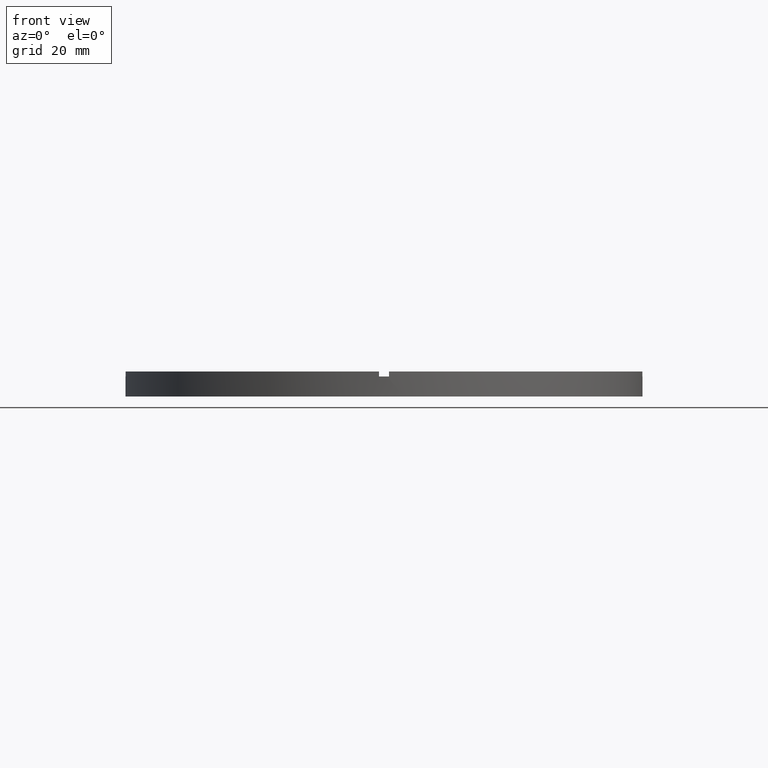
[diagram: clean part render]
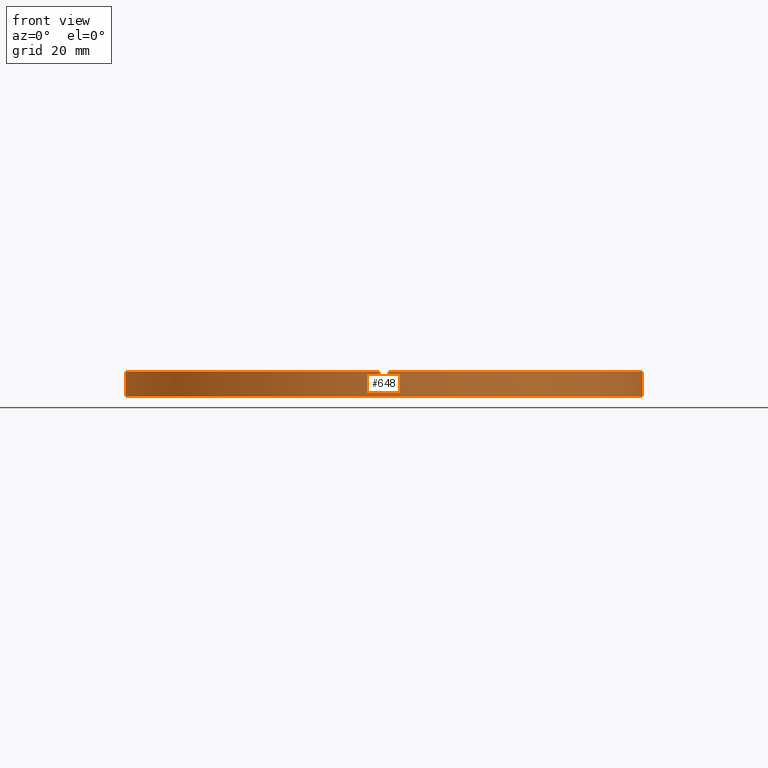
[diagram: same view with one face highlighted and labeled with its STEP entity id]
A machine part, front view. The second image highlights one B-rep face of the part: STEP entity #648.
In plain terms, the highlighted cylindrical surface (partial cylindrical patch) has radius 51.5 mm, axis along (-0, -0, -1).
Its self-contained STEP definition (entity closure, byte-faithful):
#19 = CARTESIAN_POINT ( 'NONE',  ( -1.000000000000156319, -51.49029034682169481, 4.000000000000000000 ) ) ;
#31 = ORIENTED_EDGE ( 'NONE', *, *, #251, .F. ) ;
#38 = CARTESIAN_POINT ( 'NONE',  ( -51.49029034682169481, -1.000000000000031974, 5.000000000000000000 ) ) ;
#44 = VERTEX_POINT ( 'NONE', #303 ) ;
#45 = DIRECTION ( 'NONE',  ( 1.000000000000000000, 0.000000000000000000, 0.000000000000000000 ) ) ;
#49 = CARTESIAN_POINT ( 'NONE',  ( 0.9999999999998436806, -51.49029034682169481, 5.000000000000000000 ) ) ;
#51 = EDGE_CURVE ( 'NONE', #671, #633, #138, .T. ) ;
#73 = CARTESIAN_POINT ( 'NONE',  ( 0.000000000000000000, 0.000000000000000000, 5.000000000000000000 ) ) ;
#74 = DIRECTION ( 'NONE',  ( -0.000000000000000000, -0.000000000000000000, -1.000000000000000000 ) ) ;
#87 = DIRECTION ( 'NONE',  ( 0.000000000000000000, 0.000000000000000000, 1.000000000000000000 ) ) ;
#101 = VERTEX_POINT ( 'NONE', #469 ) ;
#135 = EDGE_CURVE ( 'NONE', #44, #571, #464, .T. ) ;
#138 = CIRCLE ( 'NONE', #499, 51.50000000000000000 ) ;
#145 = CARTESIAN_POINT ( 'NONE',  ( -51.50000000000000000, 0.000000000000000000, 4.000000000000000000 ) ) ;
#147 = ORIENTED_EDGE ( 'NONE', *, *, #602, .T. ) ;
#150 = CARTESIAN_POINT ( 'NONE',  ( -51.50000000000000000, 0.000000000000000000, 5.000000000000000000 ) ) ;
#158 = EDGE_CURVE ( 'NONE', #675, #689, #498, .T. ) ;
#161 = CARTESIAN_POINT ( 'NONE',  ( -1.000000000000156319, -51.49029034682169481, 5.000000000000000000 ) ) ;
#165 = ORIENTED_EDGE ( 'NONE', *, *, #531, .F. ) ;
#166 = CARTESIAN_POINT ( 'NONE',  ( -51.50000000000000000, 0.000000000000000000, 0.000000000000000000 ) ) ;
#169 = CARTESIAN_POINT ( 'NONE',  ( 0.000000000000000000, 0.000000000000000000, 0.000000000000000000 ) ) ;
#171 = ORIENTED_EDGE ( 'NONE', *, *, #340, .F. ) ;
#176 = ORIENTED_EDGE ( 'NONE', *, *, #333, .T. ) ;
#178 = EDGE_LOOP ( 'NONE', ( #171, #31, #391, #652, #176, #165, #299, #304, #147, #456, #311, #700 ) ) ;
#185 = LINE ( 'NONE', #399, #197 ) ;
#197 = VECTOR ( 'NONE', #353, 1000.000000000000000 ) ;
#209 = VECTOR ( 'NONE', #550, 1000.000000000000000 ) ;
#223 = VECTOR ( 'NONE', #245, 1000.000000000000000 ) ;
#231 = CARTESIAN_POINT ( 'NONE',  ( 0.000000000000000000, 0.000000000000000000, 4.000000000000000000 ) ) ;
#245 = DIRECTION ( 'NONE',  ( 0.000000000000000000, 0.000000000000000000, 1.000000000000000000 ) ) ;
#251 = EDGE_CURVE ( 'NONE', #368, #101, #466, .T. ) ;
#252 = DIRECTION ( 'NONE',  ( 0.000000000000000000, 0.000000000000000000, 1.000000000000000000 ) ) ;
#253 = DIRECTION ( 'NONE',  ( -1.000000000000000000, 0.000000000000000000, 0.000000000000000000 ) ) ;
#262 = CIRCLE ( 'NONE', #583, 51.50000000000000000 ) ;
#266 = VECTOR ( 'NONE', #473, 1000.000000000000000 ) ;
#279 = DIRECTION ( 'NONE',  ( 1.000000000000000000, 0.000000000000000000, 0.000000000000000000 ) ) ;
#299 = ORIENTED_EDGE ( 'NONE', *, *, #361, .T. ) ;
#300 = DIRECTION ( 'NONE',  ( 0.000000000000000000, 0.000000000000000000, 1.000000000000000000 ) ) ;
#303 = CARTESIAN_POINT ( 'NONE',  ( 0.9999999999998436806, -51.49029034682169481, 5.000000000000000000 ) ) ;
#304 = ORIENTED_EDGE ( 'NONE', *, *, #535, .F. ) ;
#309 = AXIS2_PLACEMENT_3D ( 'NONE', #574, #87, #365 ) ;
#311 = ORIENTED_EDGE ( 'NONE', *, *, #587, .T. ) ;
#322 = CARTESIAN_POINT ( 'NONE',  ( -1.000000000000156319, -51.49029034682169481, 5.000000000000000000 ) ) ;
#326 = DIRECTION ( 'NONE',  ( 0.000000000000000000, 0.000000000000000000, 1.000000000000000000 ) ) ;
#333 = EDGE_CURVE ( 'NONE', #44, #669, #483, .T. ) ;
#340 = EDGE_CURVE ( 'NONE', #101, #633, #185, .T. ) ;
#343 = DIRECTION ( 'NONE',  ( 1.000000000000000000, 0.000000000000000000, 0.000000000000000000 ) ) ;
#345 = CARTESIAN_POINT ( 'NONE',  ( 51.49029034682169481, -1.000000000000154765, 4.000000000000000000 ) ) ;
#351 = AXIS2_PLACEMENT_3D ( 'NONE', #73, #300, #343 ) ;
#353 = DIRECTION ( 'NONE',  ( -0.000000000000000000, -0.000000000000000000, -1.000000000000000000 ) ) ;
#361 = EDGE_CURVE ( 'NONE', #419, #683, #738, .T. ) ;
#365 = DIRECTION ( 'NONE',  ( 1.000000000000000000, 0.000000000000000000, 0.000000000000000000 ) ) ;
#368 = VERTEX_POINT ( 'NONE', #345 ) ;
#378 = DIRECTION ( 'NONE',  ( -0.000000000000000000, -0.000000000000000000, -1.000000000000000000 ) ) ;
#391 = ORIENTED_EDGE ( 'NONE', *, *, #782, .T. ) ;
#397 = DIRECTION ( 'NONE',  ( 1.000000000000000000, 0.000000000000000000, 0.000000000000000000 ) ) ;
#399 = CARTESIAN_POINT ( 'NONE',  ( 51.50000000000000000, 6.306931015608868807E-15, 5.000000000000000000 ) ) ;
#403 = CARTESIAN_POINT ( 'NONE',  ( 0.000000000000000000, 0.000000000000000000, 4.000000000000000000 ) ) ;
#419 = VERTEX_POINT ( 'NONE', #19 ) ;
#439 = CARTESIAN_POINT ( 'NONE',  ( 0.9999999999998436806, -51.49029034682169481, 4.000000000000000000 ) ) ;
#450 = CIRCLE ( 'NONE', #608, 51.50000000000000000 ) ;
#456 = ORIENTED_EDGE ( 'NONE', *, *, #158, .F. ) ;
#464 = CIRCLE ( 'NONE', #351, 51.50000000000000000 ) ;
#466 = CIRCLE ( 'NONE', #595, 51.50000000000000000 ) ;
#469 = CARTESIAN_POINT ( 'NONE',  ( 51.50000000000000000, 6.306931015608868807E-15, 4.000000000000000000 ) ) ;
#473 = DIRECTION ( 'NONE',  ( 0.000000000000000000, 0.000000000000000000, 1.000000000000000000 ) ) ;
#482 = CARTESIAN_POINT ( 'NONE',  ( 0.000000000000000000, 0.000000000000000000, 5.000000000000000000 ) ) ;
#483 = LINE ( 'NONE', #49, #209 ) ;
#495 = DIRECTION ( 'NONE',  ( 0.000000000000000000, 0.000000000000000000, 1.000000000000000000 ) ) ;
#498 = CIRCLE ( 'NONE', #309, 51.50000000000000000 ) ;
#499 = AXIS2_PLACEMENT_3D ( 'NONE', #169, #252, #397 ) ;
#509 = FACE_OUTER_BOUND ( 'NONE', #178, .T. ) ;
#512 = LINE ( 'NONE', #754, #266 ) ;
#531 = EDGE_CURVE ( 'NONE', #419, #669, #450, .T. ) ;
#535 = EDGE_CURVE ( 'NONE', #635, #683, #262, .T. ) ;
#542 = DIRECTION ( 'NONE',  ( 1.000000000000000000, 0.000000000000000000, 0.000000000000000000 ) ) ;
#549 = CARTESIAN_POINT ( 'NONE',  ( -51.49029034682169481, -1.000000000000031974, 5.000000000000000000 ) ) ;
#550 = DIRECTION ( 'NONE',  ( -0.000000000000000000, -0.000000000000000000, -1.000000000000000000 ) ) ;
#571 = VERTEX_POINT ( 'NONE', #610 ) ;
#574 = CARTESIAN_POINT ( 'NONE',  ( 0.000000000000000000, 0.000000000000000000, 4.000000000000000000 ) ) ;
#583 = AXIS2_PLACEMENT_3D ( 'NONE', #753, #326, #542 ) ;
#587 = EDGE_CURVE ( 'NONE', #675, #671, #760, .T. ) ;
#595 = AXIS2_PLACEMENT_3D ( 'NONE', #403, #495, #45 ) ;
#602 = EDGE_CURVE ( 'NONE', #635, #689, #764, .T. ) ;
#608 = AXIS2_PLACEMENT_3D ( 'NONE', #231, #762, #279 ) ;
#610 = CARTESIAN_POINT ( 'NONE',  ( 51.49029034682169481, -1.000000000000154765, 5.000000000000000000 ) ) ;
#633 = VERTEX_POINT ( 'NONE', #709 ) ;
#635 = VERTEX_POINT ( 'NONE', #549 ) ;
#637 = AXIS2_PLACEMENT_3D ( 'NONE', #482, #721, #253 ) ;
#648 = ADVANCED_FACE ( 'NONE', ( #509 ), #774, .T. ) ;
#652 = ORIENTED_EDGE ( 'NONE', *, *, #135, .F. ) ;
#664 = CARTESIAN_POINT ( 'NONE',  ( -51.49029034682169481, -1.000000000000031974, 4.000000000000000000 ) ) ;
#669 = VERTEX_POINT ( 'NONE', #439 ) ;
#671 = VERTEX_POINT ( 'NONE', #166 ) ;
#675 = VERTEX_POINT ( 'NONE', #145 ) ;
#683 = VERTEX_POINT ( 'NONE', #322 ) ;
#689 = VERTEX_POINT ( 'NONE', #664 ) ;
#700 = ORIENTED_EDGE ( 'NONE', *, *, #51, .T. ) ;
#709 = CARTESIAN_POINT ( 'NONE',  ( 51.50000000000000000, 6.306931015608868807E-15, 0.000000000000000000 ) ) ;
#721 = DIRECTION ( 'NONE',  ( -0.000000000000000000, -0.000000000000000000, -1.000000000000000000 ) ) ;
#738 = LINE ( 'NONE', #161, #223 ) ;
#753 = CARTESIAN_POINT ( 'NONE',  ( 0.000000000000000000, 0.000000000000000000, 5.000000000000000000 ) ) ;
#754 = CARTESIAN_POINT ( 'NONE',  ( 51.49029034682169481, -1.000000000000154765, 5.000000000000000000 ) ) ;
#760 = LINE ( 'NONE', #150, #763 ) ;
#762 = DIRECTION ( 'NONE',  ( -0.000000000000000000, 0.000000000000000000, 1.000000000000000000 ) ) ;
#763 = VECTOR ( 'NONE', #378, 1000.000000000000000 ) ;
#764 = LINE ( 'NONE', #38, #771 ) ;
#771 = VECTOR ( 'NONE', #74, 1000.000000000000000 ) ;
#774 = CYLINDRICAL_SURFACE ( 'NONE', #637, 51.50000000000000000 ) ;
#782 = EDGE_CURVE ( 'NONE', #368, #571, #512, .T. ) ;